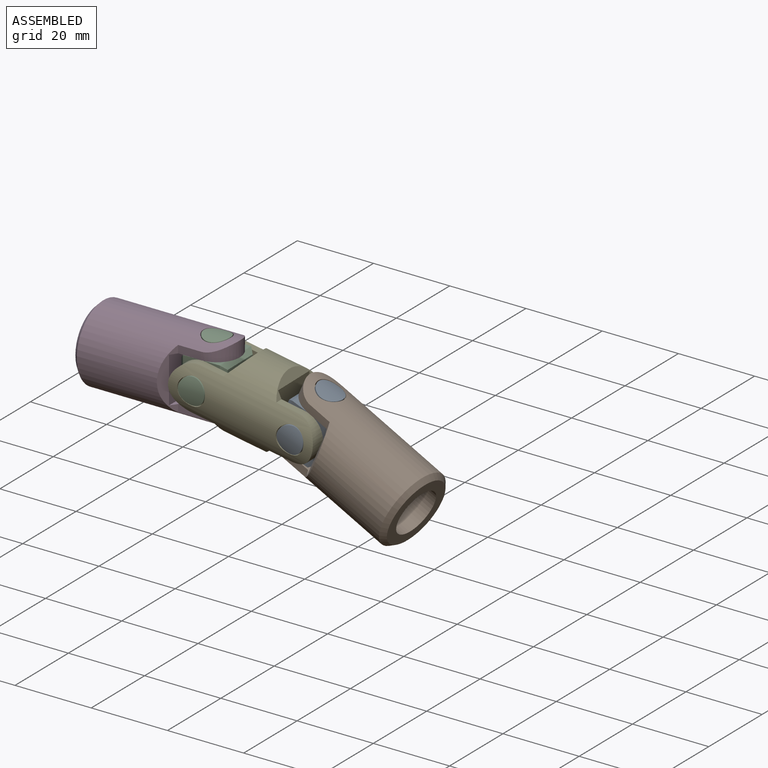
[diagram: assembled view]
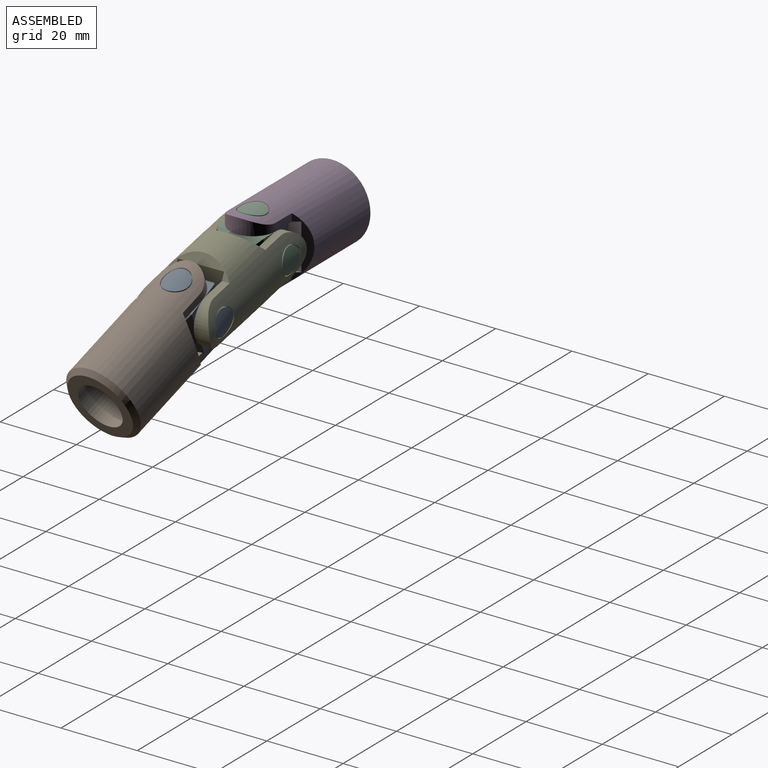
[diagram: assembled view, second angle]
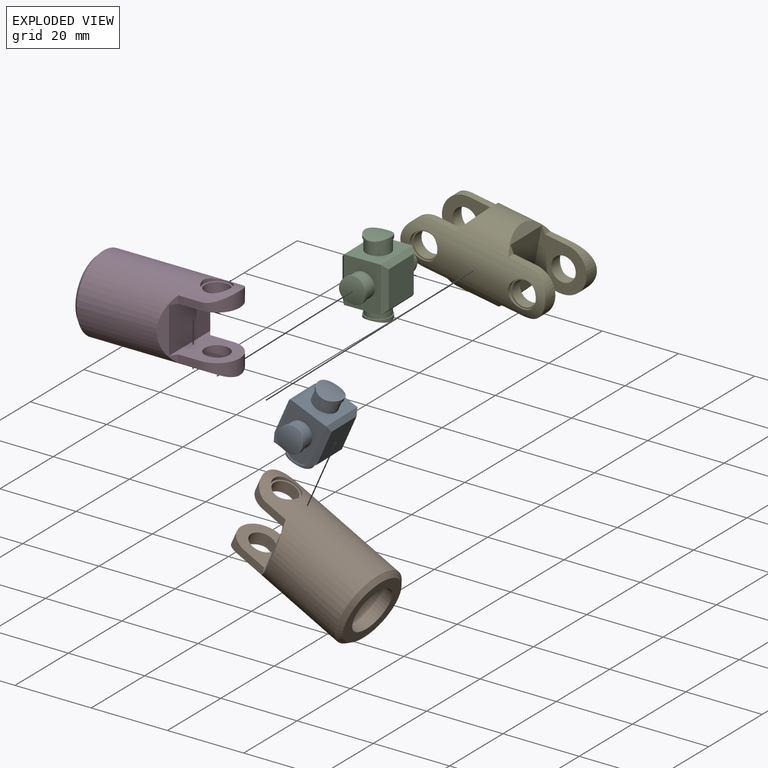
[diagram: exploded view]
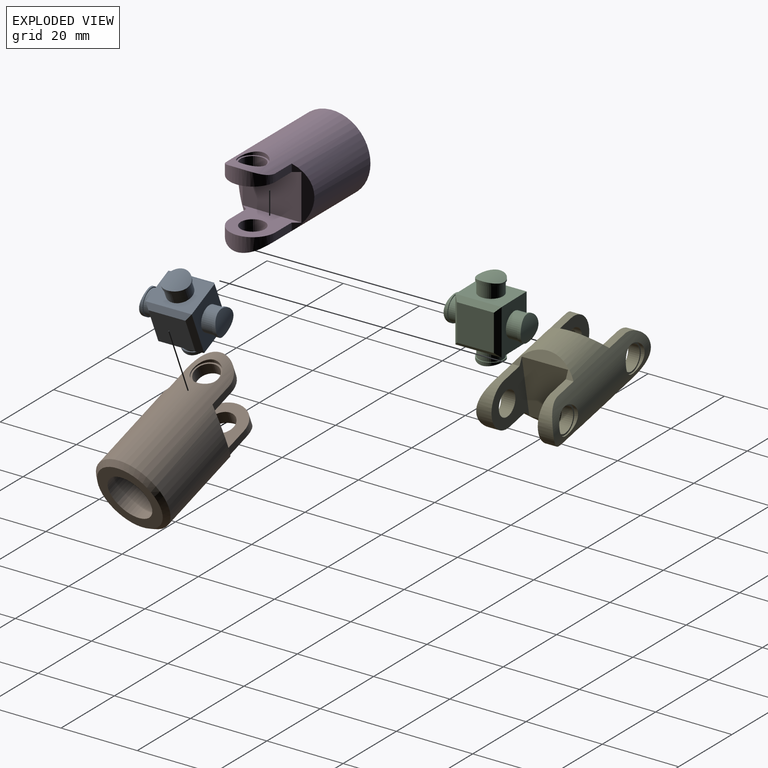
[diagram: exploded view, second angle]
ASSEMBLY  parts=5 mates=4
PART A: 30 faces, bbox 12x20x20 mm
  f0: cylinder r=3.42mm len=6.84mm, axis (0,0,1), area 15mm2, adj f5,f15
  f1: cylinder r=3.42mm len=6.84mm, axis (0,0,1), area 15mm2, adj f4,f14
  f2: cylinder r=3.42mm len=6.84mm, axis (0,-1,0), area 15mm2, adj f10,f13
  f3: cylinder r=3.42mm len=6.84mm, axis (0,-1,0), area 15mm2, adj f11,f12
  f4: cylinder r=10mm len=6.84mm, axis (1,0,0), area 37.3mm2, adj f1
  f5: cylinder r=10mm len=6.84mm, axis (1,0,0), area 37.3mm2, adj f0
  f6: cylinder r=3.18mm len=6.36mm, axis (0,0,1), area 59.9mm2, adj f14,f25
  f7: cylinder r=3.18mm len=6.36mm, axis (0,0,1), area 59.9mm2, adj f15,f26
  f8: cylinder r=3.18mm len=6.36mm, axis (0,-1,0), area 59.9mm2, adj f12,f27
  f9: cylinder r=3.18mm len=6.36mm, axis (0,-1,0), area 59.9mm2, adj f13,f20
  f10: cylinder r=10mm len=6.84mm, axis (1,0,0), area 37.3mm2, adj f2
  f11: cylinder r=10mm len=6.84mm, axis (1,0,0), area 37.3mm2, adj f3
  f12: plane 6.84x6.84mm, normal (0,1,0), area 5mm2, adj f3,f8
  f13: plane 6.84x6.84mm, normal (0,-1,0), area 5mm2, adj f2,f9
  f14: plane 6.84x6.84mm, normal (0,0,-1), area 5mm2, adj f1,f6
  f15: plane 6.84x6.84mm, normal (0,0,1), area 5mm2, adj f0,f7
  f16: plane 12x1.2mm, normal (-0.71,0,0.71), area 18.3mm2, adj f17,f18,f25,f28
  f17: plane 12x1.2mm, normal (-0.71,0.71,0), area 18.3mm2, adj f16,f19,f20,f28
  f18: plane 12x1.2mm, normal (-0.71,-0.71,0), area 18.3mm2, adj f16,f19,f27,f28
  f19: plane 12x1.2mm, normal (-0.71,0,-0.71), area 18.3mm2, adj f17,f18,f26,f28
  f20: plane 12x9.6mm, normal (0,1,0), area 83.4mm2, adj f9,f17,f22,f25,f26
  f21: plane 12x1.2mm, normal (0.71,0,-0.71), area 18.3mm2, adj f22,f23,f26,f29
  f22: plane 12x1.2mm, normal (0.71,0.71,0), area 18.3mm2, adj f20,f21,f24,f29
  f23: plane 12x1.2mm, normal (0.71,-0.71,0), area 18.3mm2, adj f21,f24,f27,f29
  f24: plane 12x1.2mm, normal (0.71,0,0.71), area 18.3mm2, adj f22,f23,f25,f29
  f25: plane 12x9.6mm, normal (0,0,1), area 83.4mm2, adj f6,f16,f20,f24,f27
  f26: plane 12x9.6mm, normal (0,0,-1), area 83.4mm2, adj f7,f19,f20,f21,f27
  f27: plane 12x9.6mm, normal (0,-1,0), area 83.4mm2, adj f8,f18,f23,f25,f26
  f28: plane 9.6x9.6mm, normal (-1,0,0), area 92.2mm2, adj f16,f17,f18,f19
  f29: plane 9.6x9.6mm, normal (1,0,0), area 92.2mm2, adj f21,f22,f23,f24
PART B: 22 faces, bbox 37x20x20 mm
  f0: cylinder r=10mm len=35.8mm, axis (-1,0,0), area 1617.8mm2, adj f1,f2,f5,f6,f7,f15,f16,f17
  f1: cylinder r=6mm len=12mm, axis (0,0,1), area 56.5mm2, adj f0,f14,f18,f20
  f2: cylinder r=6mm len=12mm, axis (0,0,1), area 56.5mm2, adj f0,f12,f16,f17
  f3: cylinder r=3.18mm len=6.36mm, axis (0,0,1), area 59.9mm2, adj f11,f12
  f4: cylinder r=3.18mm len=6.36mm, axis (0,0,1), area 59.9mm2, adj f10,f14
  f5: cylinder r=3.6mm len=7.2mm, axis (0,0,1), area 15.1mm2, adj f0,f11
  f6: cylinder r=3.6mm len=7.2mm, axis (0,0,1), area 15.1mm2, adj f0,f10
  f7: cone r=9.4mm half-angle=45deg, axis (-1,0,0), area 100.2mm2, adj f0,f21
  f8: cylinder r=6mm len=20mm, axis (1,0,0), area 754mm2, adj f9,f21
  f9: plane 12x12mm, normal (1,0,0), area 113.1mm2, adj f8
  f10: plane 7.2x7.2mm, normal (0,0,1), area 8.9mm2, adj f4,f6
  f11: plane 7.2x7.2mm, normal (0,0,-1), area 8.9mm2, adj f3,f5
  f12: plane 15.43x13.2mm, normal (0,0,1), area 113.2mm2, adj f2,f3,f13,f15,f16,f17,f19
  f13: plane 15.43x12mm, normal (-1,0,0), area 185.1mm2, adj f12,f14,f15,f19
  f14: plane 15.43x13.2mm, normal (0,0,-1), area 113.2mm2, adj f1,f4,f13,f15,f18,f19,f20
  f15: plane 16x4mm, normal (-0.82,-0.57,0), area 29.5mm2, adj f0,f12,f13,f14,f16,f18
  f16: plane 6x2mm, normal (0,-1,0), area 12mm2, adj f0,f2,f12,f15
  f17: plane 6x2mm, normal (0,1,0), area 12mm2, adj f0,f2,f12,f19
  f18: plane 6x2mm, normal (0,-1,0), area 12mm2, adj f0,f1,f14,f15
  f19: plane 16x4mm, normal (-0.82,0.57,0), area 29.5mm2, adj f0,f12,f13,f14,f17,f20
  f20: plane 6x2mm, normal (0,1,0), area 12mm2, adj f0,f1,f14,f19
  f21: plane 17.6x17.6mm, normal (1,0,0), area 130.2mm2, adj f7,f8
PART C: 30 faces, bbox 12x20x20 mm
  f0: cylinder r=3.42mm len=6.84mm, axis (0,0,1), area 15mm2, adj f5,f15
  f1: cylinder r=3.42mm len=6.84mm, axis (0,0,1), area 15mm2, adj f4,f14
  f2: cylinder r=3.42mm len=6.84mm, axis (0,-1,0), area 15mm2, adj f10,f13
  f3: cylinder r=3.42mm len=6.84mm, axis (0,-1,0), area 15mm2, adj f11,f12
  f4: cylinder r=10mm len=6.84mm, axis (1,0,0), area 37.3mm2, adj f1
  f5: cylinder r=10mm len=6.84mm, axis (1,0,0), area 37.3mm2, adj f0
  f6: cylinder r=3.18mm len=6.36mm, axis (0,0,1), area 59.9mm2, adj f14,f25
  f7: cylinder r=3.18mm len=6.36mm, axis (0,0,1), area 59.9mm2, adj f15,f26
  f8: cylinder r=3.18mm len=6.36mm, axis (0,-1,0), area 59.9mm2, adj f12,f27
  f9: cylinder r=3.18mm len=6.36mm, axis (0,-1,0), area 59.9mm2, adj f13,f20
  f10: cylinder r=10mm len=6.84mm, axis (1,0,0), area 37.3mm2, adj f2
  f11: cylinder r=10mm len=6.84mm, axis (1,0,0), area 37.3mm2, adj f3
  f12: plane 6.84x6.84mm, normal (0,1,0), area 5mm2, adj f3,f8
  f13: plane 6.84x6.84mm, normal (0,-1,0), area 5mm2, adj f2,f9
  f14: plane 6.84x6.84mm, normal (0,0,-1), area 5mm2, adj f1,f6
  f15: plane 6.84x6.84mm, normal (0,0,1), area 5mm2, adj f0,f7
  f16: plane 12x1.2mm, normal (-0.71,0,0.71), area 18.3mm2, adj f17,f18,f25,f28
  f17: plane 12x1.2mm, normal (-0.71,0.71,0), area 18.3mm2, adj f16,f19,f20,f28
  f18: plane 12x1.2mm, normal (-0.71,-0.71,0), area 18.3mm2, adj f16,f19,f27,f28
  f19: plane 12x1.2mm, normal (-0.71,0,-0.71), area 18.3mm2, adj f17,f18,f26,f28
  f20: plane 12x9.6mm, normal (0,1,0), area 83.4mm2, adj f9,f17,f22,f25,f26
  f21: plane 12x1.2mm, normal (0.71,0,-0.71), area 18.3mm2, adj f22,f23,f26,f29
  f22: plane 12x1.2mm, normal (0.71,0.71,0), area 18.3mm2, adj f20,f21,f24,f29
  f23: plane 12x1.2mm, normal (0.71,-0.71,0), area 18.3mm2, adj f21,f24,f27,f29
  f24: plane 12x1.2mm, normal (0.71,0,0.71), area 18.3mm2, adj f22,f23,f25,f29
  f25: plane 12x9.6mm, normal (0,0,1), area 83.4mm2, adj f6,f16,f20,f24,f27
  f26: plane 12x9.6mm, normal (0,0,-1), area 83.4mm2, adj f7,f19,f20,f21,f27
  f27: plane 12x9.6mm, normal (0,-1,0), area 83.4mm2, adj f8,f18,f23,f25,f26
  f28: plane 9.6x9.6mm, normal (-1,0,0), area 92.2mm2, adj f16,f17,f18,f19
  f29: plane 9.6x9.6mm, normal (1,0,0), area 92.2mm2, adj f21,f22,f23,f24
PART D: 22 faces, bbox 37x20x20 mm
  f0: cylinder r=10mm len=35.8mm, axis (1,0,0), area 1617.8mm2, adj f1,f2,f5,f6,f7,f15,f16,f17
  f1: cylinder r=6mm len=12mm, axis (0,0,1), area 56.5mm2, adj f0,f14,f18,f20
  f2: cylinder r=6mm len=12mm, axis (0,0,1), area 56.5mm2, adj f0,f12,f16,f17
  f3: cylinder r=3.18mm len=6.36mm, axis (0,0,1), area 59.9mm2, adj f11,f12
  f4: cylinder r=3.18mm len=6.36mm, axis (0,0,1), area 59.9mm2, adj f10,f14
  f5: cylinder r=3.6mm len=7.2mm, axis (0,0,1), area 15.1mm2, adj f0,f11
  f6: cylinder r=3.6mm len=7.2mm, axis (0,0,1), area 15.1mm2, adj f0,f10
  f7: cone r=9.4mm half-angle=45deg, axis (1,0,0), area 100.2mm2, adj f0,f21
  f8: cylinder r=6mm len=20mm, axis (1,0,0), area 754mm2, adj f9,f21
  f9: plane 12x12mm, normal (-1,0,0), area 113.1mm2, adj f8
  f10: plane 7.2x7.2mm, normal (0,0,1), area 8.9mm2, adj f4,f6
  f11: plane 7.2x7.2mm, normal (0,0,-1), area 8.9mm2, adj f3,f5
  f12: plane 15.43x13.2mm, normal (0,0,1), area 113.2mm2, adj f2,f3,f13,f15,f16,f17,f19
  f13: plane 15.43x12mm, normal (1,0,0), area 185.1mm2, adj f12,f14,f15,f19
  f14: plane 15.43x13.2mm, normal (0,0,-1), area 113.2mm2, adj f1,f4,f13,f15,f18,f19,f20
  f15: plane 16x4mm, normal (0.82,0.57,0), area 29.5mm2, adj f0,f12,f13,f14,f16,f18
  f16: plane 6x2mm, normal (0,1,0), area 12mm2, adj f0,f2,f12,f15
  f17: plane 6x2mm, normal (0,-1,0), area 12mm2, adj f0,f2,f12,f19
  f18: plane 6x2mm, normal (0,1,0), area 12mm2, adj f0,f1,f14,f15
  f19: plane 16x4mm, normal (0.82,-0.57,0), area 29.5mm2, adj f0,f12,f13,f14,f17,f20
  f20: plane 6x2mm, normal (0,-1,0), area 12mm2, adj f0,f1,f14,f19
  f21: plane 17.6x17.6mm, normal (-1,0,0), area 130.2mm2, adj f7,f8
PART E: 35 faces, bbox 38x20x20 mm
  f0: cylinder r=10mm len=38mm, axis (-1,0,0), area 1124.5mm2, adj f1,f2,f5,f6,f7,f8,f11,f12
  f1: cylinder r=6mm len=12mm, axis (0,-1,0), area 56.5mm2, adj f0,f28,f32,f34
  f2: cylinder r=6mm len=12mm, axis (0,-1,0), area 56.5mm2, adj f0,f26,f30,f31
  f3: cylinder r=3.18mm len=6.36mm, axis (0,-1,0), area 59.9mm2, adj f25,f26
  f4: cylinder r=3.18mm len=6.36mm, axis (0,-1,0), area 59.9mm2, adj f24,f28
  f5: cylinder r=3.6mm len=7.2mm, axis (0,-1,0), area 15.1mm2, adj f0,f25
  f6: cylinder r=3.6mm len=7.2mm, axis (0,-1,0), area 15.1mm2, adj f0,f24
  f7: cylinder r=6mm len=12mm, axis (0,-1,0), area 56.5mm2, adj f0,f17,f21,f23
  f8: cylinder r=6mm len=12mm, axis (0,-1,0), area 56.5mm2, adj f0,f15,f19,f20
  f9: cylinder r=3.18mm len=6.36mm, axis (0,-1,0), area 59.9mm2, adj f14,f15
  f10: cylinder r=3.18mm len=6.36mm, axis (0,-1,0), area 59.9mm2, adj f13,f17
  f11: cylinder r=3.6mm len=7.2mm, axis (0,-1,0), area 15.1mm2, adj f0,f14
  f12: cylinder r=3.6mm len=7.2mm, axis (0,-1,0), area 15.1mm2, adj f0,f13
  f13: plane 7.2x7.2mm, normal (0,-1,0), area 8.9mm2, adj f10,f12
  f14: plane 7.2x7.2mm, normal (0,1,0), area 8.9mm2, adj f9,f11
  f15: plane 15.43x13.2mm, normal (0,-1,0), area 113.2mm2, adj f8,f9,f16,f18,f19,f20,f22
  f16: plane 15.43x12mm, normal (1,0,0), area 185.1mm2, adj f15,f17,f18,f22
  f17: plane 15.43x13.2mm, normal (0,1,0), area 113.2mm2, adj f7,f10,f16,f18,f21,f22,f23
  f18: plane 16x4mm, normal (0.82,0,0.57), area 29.5mm2, adj f0,f15,f16,f17,f19,f21
  f19: plane 6x2mm, normal (0,0,1), area 12mm2, adj f0,f8,f15,f18
  f20: plane 6x2mm, normal (0,0,-1), area 12mm2, adj f0,f8,f15,f22
  f21: plane 6x2mm, normal (0,0,1), area 12mm2, adj f0,f7,f17,f18
  f22: plane 16x4mm, normal (0.82,0,-0.57), area 29.5mm2, adj f0,f15,f16,f17,f20,f23
  f23: plane 6x2mm, normal (0,0,-1), area 12mm2, adj f0,f7,f17,f22
  f24: plane 7.2x7.2mm, normal (0,-1,0), area 8.9mm2, adj f4,f6
  f25: plane 7.2x7.2mm, normal (0,1,0), area 8.9mm2, adj f3,f5
  f26: plane 15.43x13.2mm, normal (0,-1,0), area 113.2mm2, adj f2,f3,f27,f29,f30,f31,f33
  f27: plane 15.43x12mm, normal (-1,0,0), area 185.1mm2, adj f26,f28,f29,f33
  f28: plane 15.43x13.2mm, normal (0,1,0), area 113.2mm2, adj f1,f4,f27,f29,f32,f33,f34
  f29: plane 16x4mm, normal (-0.82,0,-0.57), area 29.5mm2, adj f0,f26,f27,f28,f30,f32
  f30: plane 6x2mm, normal (0,0,-1), area 12mm2, adj f0,f2,f26,f29
  f31: plane 6x2mm, normal (0,0,1), area 12mm2, adj f0,f2,f26,f33
  f32: plane 6x2mm, normal (0,0,-1), area 12mm2, adj f0,f1,f28,f29
  f33: plane 16x4mm, normal (-0.82,0,0.57), area 29.5mm2, adj f0,f26,f27,f28,f31,f34
  f34: plane 6x2mm, normal (0,0,1), area 12mm2, adj f0,f1,f28,f33
PLACE A rot(axis=(-0.01,1,0.04),23.6deg) t=(4.3,-0.44,17.94)mm
PLACE B rot(axis=(-0.06,0.98,-0.2),24.1deg) t=(4.48,5.46,17.82)mm
PLACE C rot(axis=(0,0,1),1deg) t=(0,-0.51,0)mm
PLACE D at identity fixed
PLACE E rot(axis=(-0.01,1,0.09),10.8deg) t=(0.55,-0.51,5.77)mm
MATE revolute B.f1 <-> A.f0  axis (0.4,0.01,0.92) through (60.14,0.48,3.41)mm
MATE revolute E.f12 <-> A.f8  axis (0.02,-1,0) through (56.69,-8.57,-4.84)mm
MATE revolute E.f5 <-> C.f8  axis (0.02,-1,0) through (31.15,-9,0)mm
MATE revolute C.f0 <-> D.f1  axis (0,0,1) through (31,0,9)mm
